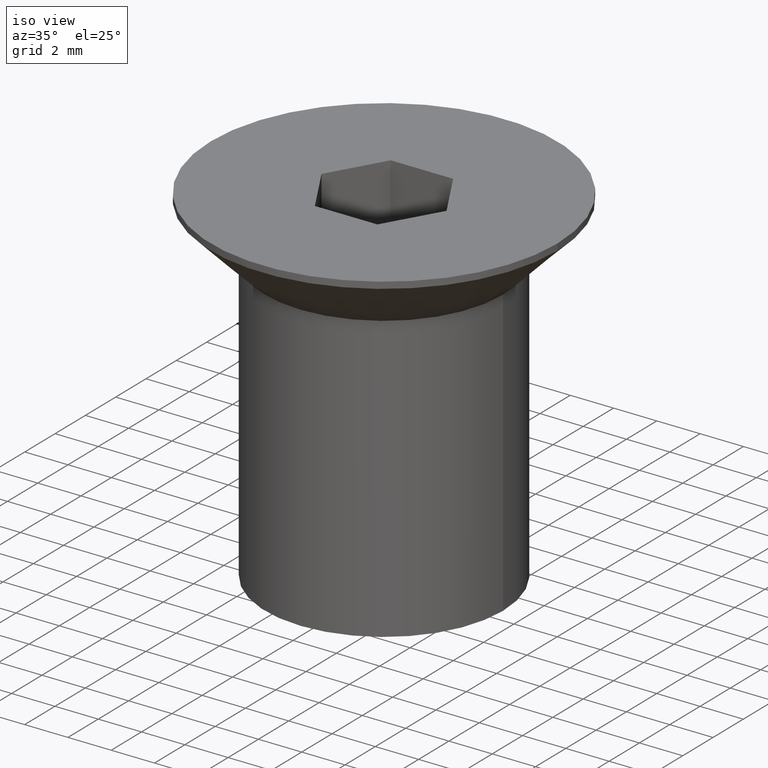
[diagram: clean part render]
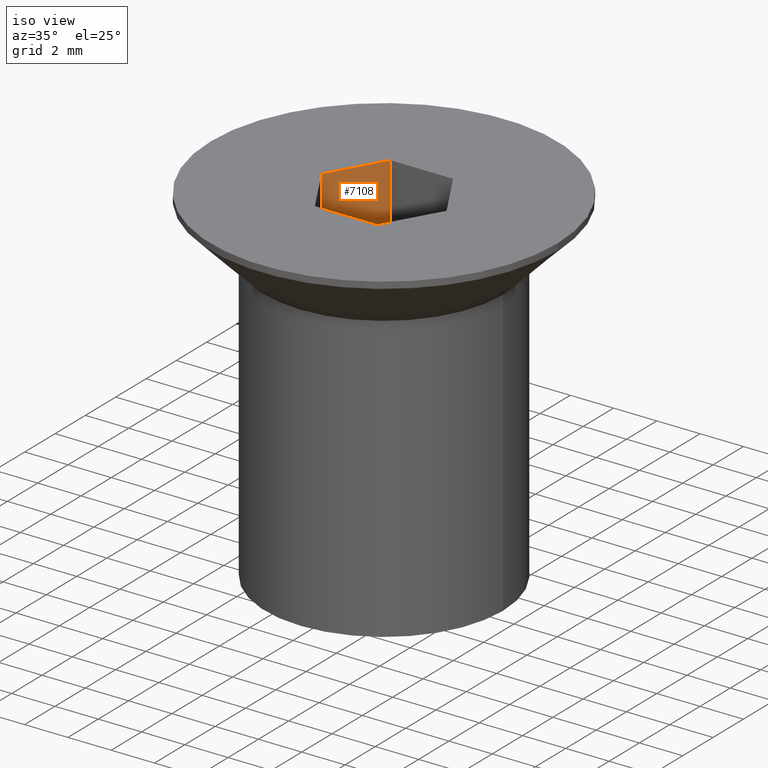
[diagram: same view with one face highlighted and labeled with its STEP entity id]
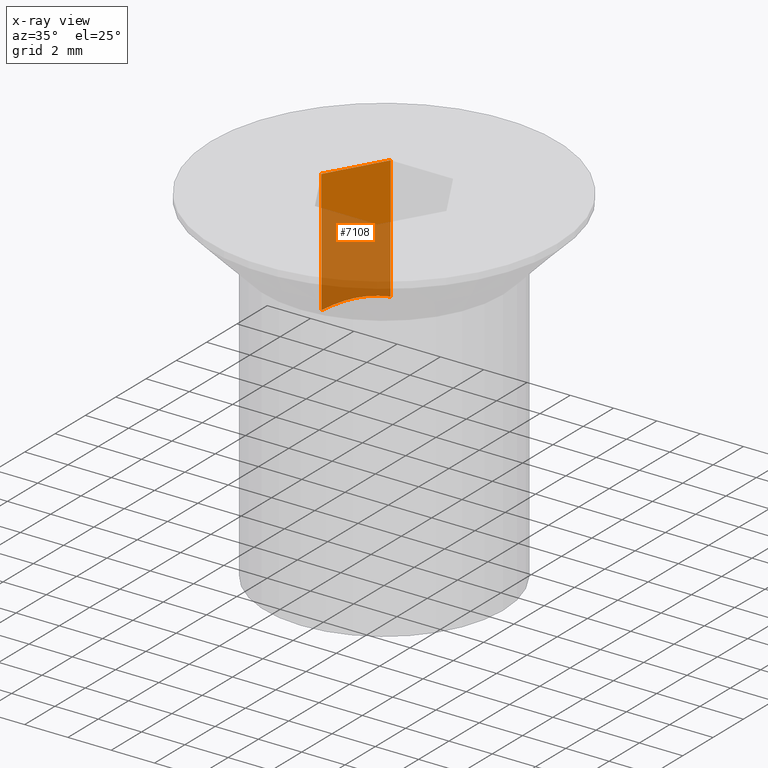
[diagram: x-ray of the same camera — body ghosted, the highlighted face saturated]
A machine part, iso view. The second image highlights one B-rep face of the part: STEP entity #7108.
The next image is the same camera in x-ray: the body ghosted, the highlighted face saturated — about 62% of this face is hidden behind the body in this view.
In plain terms, the highlighted planar face has unit normal (-0.866, 0.5, 0).
Its self-contained STEP definition (entity closure, byte-faithful):
#148 = CARTESIAN_POINT ( 'NONE',  ( -2.651472570902168300, 0.4075147923221707500, 2.449760654408629900 ) ) ;
#456 = CARTESIAN_POINT ( 'NONE',  ( -2.886751345948128700, -1.282646666251074100E-015, -8.000000000000000000 ) ) ;
#817 = EDGE_CURVE ( 'NONE', #2368, #4383, #13452, .T. ) ;
#1201 = ORIENTED_EDGE ( 'NONE', *, *, #4981, .T. ) ;
#1423 = CARTESIAN_POINT ( 'NONE',  ( -2.412422255547018900, 0.8215620840826505200, 2.540395567009153600 ) ) ;
#1480 = CARTESIAN_POINT ( 'NONE',  ( -1.443375672974064500, 2.499999999999997800, 2.308390903988669900 ) ) ;
#2368 = VERTEX_POINT ( 'NONE', #3706 ) ;
#2465 = CARTESIAN_POINT ( 'NONE',  ( -2.886751345948128700, -1.330137290575513100E-015, 2.308390903988669000 ) ) ;
#3089 = VECTOR ( 'NONE', #11972, 1000.000000000000000 ) ;
#3475 = DIRECTION ( 'NONE',  ( -0.5000000000000000000, -0.8660254037844386000, 0.0000000000000000000 ) ) ;
#3607 = VECTOR ( 'NONE', #10364, 1000.000000000000200 ) ;
#3706 = CARTESIAN_POINT ( 'NONE',  ( -2.886751345948128700, -1.330137290575513100E-015, 2.308390903988669000 ) ) ;
#3999 = CARTESIAN_POINT ( 'NONE',  ( -2.043782441156799700, 1.460064972299272000, 2.540962208946303300 ) ) ;
#4022 = CARTESIAN_POINT ( 'NONE',  ( -1.443375672974064500, 2.499999999999997800, 8.000000000000000000 ) ) ;
#4383 = VERTEX_POINT ( 'NONE', #7578 ) ;
#4981 = EDGE_CURVE ( 'NONE', #12225, #4383, #10779, .T. ) ;
#5286 = CARTESIAN_POINT ( 'NONE',  ( -1.443375672974064500, 2.499999999999997800, 2.308390903988669900 ) ) ;
#5422 = EDGE_CURVE ( 'NONE', #5886, #12225, #14566, .T. ) ;
#5886 = VERTEX_POINT ( 'NONE', #1480 ) ;
#6266 = CARTESIAN_POINT ( 'NONE',  ( -1.680066129163376100, 2.090040104213455300, 2.437669810066551700 ) ) ;
#7108 = ADVANCED_FACE ( 'NONE', ( #14493 ), #7340, .F. ) ;
#7340 = PLANE ( 'NONE',  #15423 ) ;
#7578 = CARTESIAN_POINT ( 'NONE',  ( -2.886751345948128700, -1.282646666251074100E-015, 8.000000000000000000 ) ) ;
#7772 = VECTOR ( 'NONE', #12598, 1000.000000000000000 ) ;
#8576 = CARTESIAN_POINT ( 'NONE',  ( -1.443375672974064500, 2.499999999999997800, 8.000000000000000000 ) ) ;
#9265 = EDGE_CURVE ( 'NONE', #2368, #5886, #10562, .T. ) ;
#9408 = ORIENTED_EDGE ( 'NONE', *, *, #817, .F. ) ;
#9762 = CARTESIAN_POINT ( 'NONE',  ( -1.443375672974064500, 2.499999999999997800, -8.000000000000000000 ) ) ;
#10364 = DIRECTION ( 'NONE',  ( -0.5000000000000000000, -0.8660254037844386000, 0.0000000000000000000 ) ) ;
#10562 = B_SPLINE_CURVE_WITH_KNOTS ( 'NONE', 3,
 ( #2465, #148, #1423, #3999, #12912, #6266, #15191, #5286 ),
 .UNSPECIFIED., .F., .F.,
 ( 4, 2, 2, 4 ),
 ( 2.386330728868349600E-007, 0.001458932498130400500, 0.002188279430659157200, 0.002917626363187914200 ),
 .UNSPECIFIED. ) ;
#10779 = LINE ( 'NONE', #4022, #3607 ) ;
#11353 = CARTESIAN_POINT ( 'NONE',  ( -1.443375672974064500, 2.499999999999997800, -8.000000000000000000 ) ) ;
#11513 = EDGE_LOOP ( 'NONE', ( #9408, #12048, #14653, #1201 ) ) ;
#11972 = DIRECTION ( 'NONE',  ( -0.0000000000000000000, -0.0000000000000000000, 1.000000000000000000 ) ) ;
#12048 = ORIENTED_EDGE ( 'NONE', *, *, #9265, .T. ) ;
#12225 = VERTEX_POINT ( 'NONE', #8576 ) ;
#12598 = DIRECTION ( 'NONE',  ( -0.0000000000000000000, -0.0000000000000000000, 1.000000000000000000 ) ) ;
#12912 = CARTESIAN_POINT ( 'NONE',  ( -1.920934322701776100, 1.672844155077613200, 2.518713501005156500 ) ) ;
#13452 = LINE ( 'NONE', #456, #3089 ) ;
#14493 = FACE_OUTER_BOUND ( 'NONE', #11513, .T. ) ;
#14566 = LINE ( 'NONE', #11353, #7772 ) ;
#14653 = ORIENTED_EDGE ( 'NONE', *, *, #5422, .T. ) ;
#15191 = CARTESIAN_POINT ( 'NONE',  ( -1.561188281649210900, 2.295942576002415700, 2.379179860967340700 ) ) ;
#15423 = AXIS2_PLACEMENT_3D ( 'NONE', #9762, #16161, #3475 ) ;
#16161 = DIRECTION ( 'NONE',  ( -0.8660254037844387100, 0.5000000000000001100, 0.0000000000000000000 ) ) ;